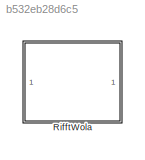
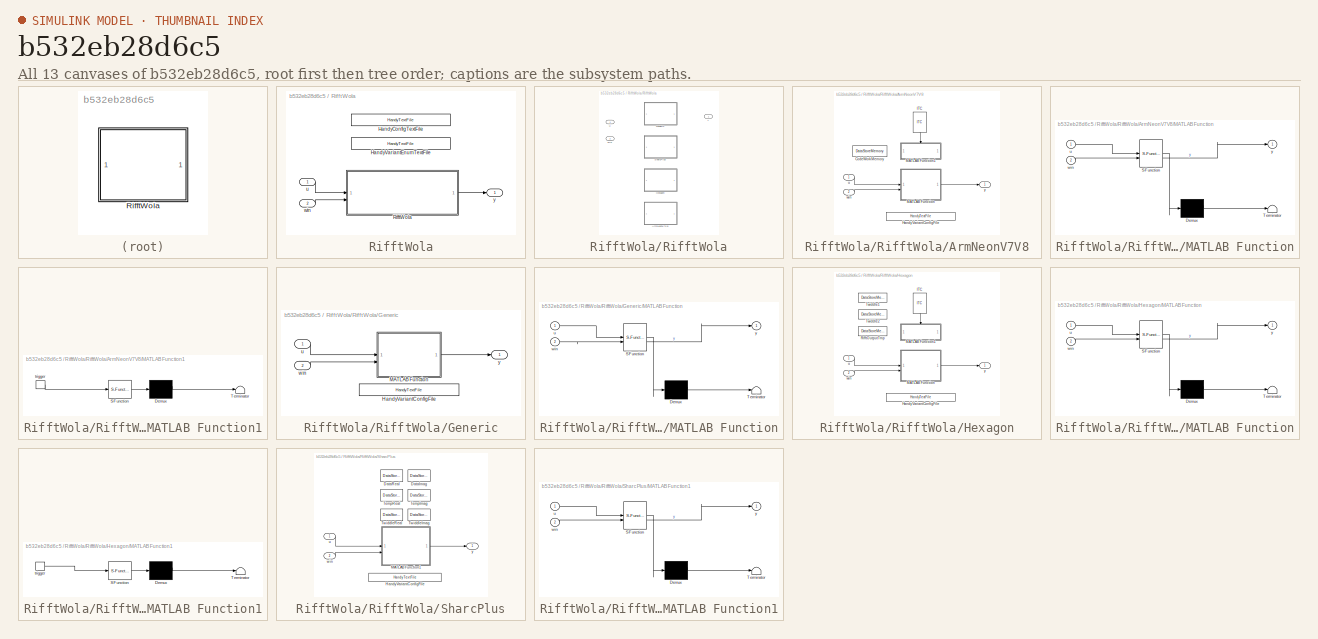
[diagram: thumbnail index - all 13 canvases of the model, root first then tree order]
MODEL slx_b532eb28d6c5
KIND library
CONFIG AbsTol = auto
CONFIG EnableMultiTasking = off
CONFIG FixedStep = auto
CONFIG MaxStep = auto
CONFIG MinStep = auto
CONFIG RelTol = 1e-3
CONFIG SampleTimeConstraint = Unconstrained
CONFIG SolverName = VariableStepAuto
CONFIG StartTime = 0.0
CONFIG StopTime = 10.0
BLOCK [SubSystem] RifftWola
BLOCK [Reference] RifftWola/HandyConfigTextFile  REF=HandyTextFile/HandyTextFile
  SourceBlock = HandyTextFile/HandyTextFile
  SourceProductName = Bose Talaria
  SourceType = Talaria Handy Text File
BLOCK [Reference] RifftWola/HandyVariantEnumTextFile  REF=HandyTextFile/HandyTextFile
  SourceBlock = HandyTextFile/HandyTextFile
  SourceProductName = Bose Talaria
  SourceType = Talaria Handy Text File
BLOCK [SubSystem] RifftWola/RifftWola
  Variant = on
BLOCK [SubSystem] RifftWola/RifftWola/ArmNeonV7V8
  VariantControl = Config.Variant == "ArmNeonV7V8"
BLOCK [DataStoreMemory] RifftWola/RifftWola/ArmNeonV7V8/CodeWorkMemory
  DataStoreName = CodeWorkMemory
  InitialValue = Config.VariantObj.DsmCodeWorkMemoryInitValue
  OutDataTypeStr = uint32
  ShowAdditionalParam = off
  SignalType = real
  WriteAfterWriteMsg = warning
BLOCK [Reference] RifftWola/RifftWola/ArmNeonV7V8/HandyVariantConfigFile  REF=HandyTextFile/HandyTextFile
  SourceBlock = HandyTextFile/HandyTextFile
  SourceProductName = Bose Talaria
  SourceType = Talaria Handy Text File
BLOCK [Reference] RifftWola/RifftWola/ArmNeonV7V8/ITC  REF=ITC/ITC
  NameLocation = right
  SourceBlock = ITC/ITC
  SourceProductName = Bose Talaria
  SourceType = Talaria Initialization Trigger Control
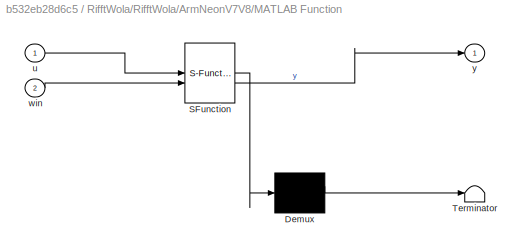
BLOCK [SubSystem] RifftWola/RifftWola/ArmNeonV7V8/MATLAB Function
  ErrorFcn = Stateflow.Translate.translate
  LibrarySourceBlock = simulink/User-Defined\nFunctions/MATLAB Function
  PermitHierarchicalResolution = ExplicitOnly
  SFBlockType = MATLAB Function
  TreatAsAtomicUnit = on
BLOCK [Demux] RifftWola/RifftWola/ArmNeonV7V8/MATLAB Function/ Demux 
  Outputs = 1
BLOCK [S-Function] RifftWola/RifftWola/ArmNeonV7V8/MATLAB Function/ SFunction 
  EnableBusSupport = off
  FunctionName = sf_sfun
  Parameters = fftSize,numOverlap
  PortCounts = [2 2]
  SFcnIsStateOwnerBlock = off
  SFunctionDeploymentMode = off
  Tag = Stateflow S-Function 1
BLOCK [Terminator] RifftWola/RifftWola/ArmNeonV7V8/MATLAB Function/ Terminator 
BLOCK [Inport] RifftWola/RifftWola/ArmNeonV7V8/MATLAB Function/u
BLOCK [Inport] RifftWola/RifftWola/ArmNeonV7V8/MATLAB Function/win
  Port = 2
BLOCK [Outport] RifftWola/RifftWola/ArmNeonV7V8/MATLAB Function/y
BLOCK [SubSystem] RifftWola/RifftWola/ArmNeonV7V8/MATLAB Function1
  ErrorFcn = Stateflow.Translate.translate
  LibrarySourceBlock = simulink/User-Defined\nFunctions/MATLAB Function
  PermitHierarchicalResolution = ExplicitOnly
  SFBlockType = MATLAB Function
  TreatAsAtomicUnit = on
BLOCK [Demux] RifftWola/RifftWola/ArmNeonV7V8/MATLAB Function1/ Demux 
  Outputs = 1
BLOCK [S-Function] RifftWola/RifftWola/ArmNeonV7V8/MATLAB Function1/ SFunction 
  EnableBusSupport = off
  FunctionName = sf_sfun
  Parameters = fftSize
  PortCounts = [1 1]
  SFcnIsStateOwnerBlock = off
  SFunctionDeploymentMode = off
  Tag = Stateflow S-Function 6
BLOCK [Terminator] RifftWola/RifftWola/ArmNeonV7V8/MATLAB Function1/ Terminator 
BLOCK [TriggerPort] RifftWola/RifftWola/ArmNeonV7V8/MATLAB Function1/trigger
  ShowOutputPort = on
  StatesWhenEnabling = held
  TriggerType = function-call
  VariantControl = (inherit)
BLOCK [Inport] RifftWola/RifftWola/ArmNeonV7V8/u
BLOCK [Inport] RifftWola/RifftWola/ArmNeonV7V8/win
  Port = 2
BLOCK [Outport] RifftWola/RifftWola/ArmNeonV7V8/y
BLOCK [SubSystem] RifftWola/RifftWola/Generic
  VariantControl = (default)
BLOCK [Reference] RifftWola/RifftWola/Generic/HandyVariantConfigFile  REF=HandyTextFile/HandyTextFile
  SourceBlock = HandyTextFile/HandyTextFile
  SourceProductName = Bose Talaria
  SourceType = Talaria Handy Text File
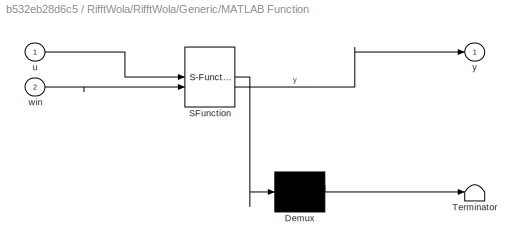
BLOCK [SubSystem] RifftWola/RifftWola/Generic/MATLAB Function
  ErrorFcn = Stateflow.Translate.translate
  LibrarySourceBlock = simulink/User-Defined\nFunctions/MATLAB Function
  PermitHierarchicalResolution = ExplicitOnly
  SFBlockType = MATLAB Function
  TreatAsAtomicUnit = on
BLOCK [Demux] RifftWola/RifftWola/Generic/MATLAB Function/ Demux 
  Outputs = 1
BLOCK [S-Function] RifftWola/RifftWola/Generic/MATLAB Function/ SFunction 
  EnableBusSupport = off
  FunctionName = sf_sfun
  Parameters = fftSize,numOverlap
  PortCounts = [2 2]
  SFcnIsStateOwnerBlock = off
  SFunctionDeploymentMode = off
  Tag = Stateflow S-Function 5
BLOCK [Terminator] RifftWola/RifftWola/Generic/MATLAB Function/ Terminator 
BLOCK [Inport] RifftWola/RifftWola/Generic/MATLAB Function/u
BLOCK [Inport] RifftWola/RifftWola/Generic/MATLAB Function/win
  Port = 2
BLOCK [Outport] RifftWola/RifftWola/Generic/MATLAB Function/y
BLOCK [Inport] RifftWola/RifftWola/Generic/u
BLOCK [Inport] RifftWola/RifftWola/Generic/win
  Port = 2
BLOCK [Outport] RifftWola/RifftWola/Generic/y
BLOCK [SubSystem] RifftWola/RifftWola/Hexagon
  VariantControl = Config.Variant == "Hexagon"
BLOCK [Reference] RifftWola/RifftWola/Hexagon/HandyVariantConfigFile  REF=HandyTextFile/HandyTextFile
  SourceBlock = HandyTextFile/HandyTextFile
  SourceProductName = Bose Talaria
  SourceType = Talaria Handy Text File
BLOCK [Reference] RifftWola/RifftWola/Hexagon/ITC  REF=ITC/ITC
  NameLocation = right
  SourceBlock = ITC/ITC
  SourceProductName = Bose Talaria
  SourceType = Talaria Initialization Trigger Control
BLOCK [SubSystem] RifftWola/RifftWola/Hexagon/MATLAB Function
  ErrorFcn = Stateflow.Translate.translate
  LibrarySourceBlock = simulink/User-Defined\nFunctions/MATLAB Function
  PermitHierarchicalResolution = ExplicitOnly
  SFBlockType = MATLAB Function
  TreatAsAtomicUnit = on
BLOCK [Demux] RifftWola/RifftWola/Hexagon/MATLAB Function/ Demux 
  Outputs = 1
BLOCK [S-Function] RifftWola/RifftWola/Hexagon/MATLAB Function/ SFunction 
  EnableBusSupport = off
  FunctionName = sf_sfun
  Parameters = fftSize,numOverlap
  PortCounts = [2 2]
  SFcnIsStateOwnerBlock = off
  SFunctionDeploymentMode = off
  Tag = Stateflow S-Function 2
BLOCK [Terminator] RifftWola/RifftWola/Hexagon/MATLAB Function/ Terminator 
BLOCK [Inport] RifftWola/RifftWola/Hexagon/MATLAB Function/u
BLOCK [Inport] RifftWola/RifftWola/Hexagon/MATLAB Function/win
  Port = 2
BLOCK [Outport] RifftWola/RifftWola/Hexagon/MATLAB Function/y
BLOCK [SubSystem] RifftWola/RifftWola/Hexagon/MATLAB Function1
  ErrorFcn = Stateflow.Translate.translate
  LibrarySourceBlock = simulink/User-Defined\nFunctions/MATLAB Function
  PermitHierarchicalResolution = ExplicitOnly
  SFBlockType = MATLAB Function
  TreatAsAtomicUnit = on
BLOCK [Demux] RifftWola/RifftWola/Hexagon/MATLAB Function1/ Demux 
  Outputs = 1
BLOCK [S-Function] RifftWola/RifftWola/Hexagon/MATLAB Function1/ SFunction 
  EnableBusSupport = off
  FunctionName = sf_sfun
  Parameters = fftSize
  PortCounts = [1 1]
  SFcnIsStateOwnerBlock = off
  SFunctionDeploymentMode = off
  Tag = Stateflow S-Function 3
BLOCK [Terminator] RifftWola/RifftWola/Hexagon/MATLAB Function1/ Terminator 
BLOCK [TriggerPort] RifftWola/RifftWola/Hexagon/MATLAB Function1/trigger
  ShowOutputPort = on
  StatesWhenEnabling = held
  TriggerType = function-call
  VariantControl = (inherit)
BLOCK [DataStoreMemory] RifftWola/RifftWola/Hexagon/RifftOutputTmp
  DataStoreName = RifftOutputTmp
  InitialValue = Config.VariantObj.DsmRifftOutputTmpInitValue
  OutDataTypeStr = single
  ShowAdditionalParam = off
  SignalType = complex
  WriteAfterWriteMsg = warning
BLOCK [DataStoreMemory] RifftWola/RifftWola/Hexagon/Twiddle1
  DataStoreName = Twiddle1
  InitialValue = Config.VariantObj.DsmTwiddle1InitValue
  OutDataTypeStr = single
  ShowAdditionalParam = off
  SignalType = complex
  WriteAfterWriteMsg = warning
BLOCK [DataStoreMemory] RifftWola/RifftWola/Hexagon/Twiddle2
  DataStoreName = Twiddle2
  InitialValue = Config.VariantObj.DsmTwiddle2InitValue
  OutDataTypeStr = single
  ShowAdditionalParam = off
  SignalType = complex
  WriteAfterWriteMsg = warning
BLOCK [Inport] RifftWola/RifftWola/Hexagon/u
BLOCK [Inport] RifftWola/RifftWola/Hexagon/win
  Port = 2
BLOCK [Outport] RifftWola/RifftWola/Hexagon/y
BLOCK [SubSystem] RifftWola/RifftWola/SharcPlus
  VariantControl = Config.Variant.StartsWith("SharcPlus")
BLOCK [DataStoreMemory] RifftWola/RifftWola/SharcPlus/DataImag
  DataStoreName = DataImag
  InitialValue = Config.VariantObj.DsmDataImagInitValue
  OutDataTypeStr = single
  ReadBeforeWriteMsg = warning
  ShowAdditionalParam = off
  SignalType = real
  WriteAfterReadMsg = warning
  WriteAfterWriteMsg = warning
BLOCK [DataStoreMemory] RifftWola/RifftWola/SharcPlus/DataReal
  DataStoreName = DataReal
  InitialValue = Config.VariantObj.DsmDataRealInitValue
  OutDataTypeStr = single
  ReadBeforeWriteMsg = warning
  ShowAdditionalParam = off
  SignalType = real
  WriteAfterReadMsg = warning
  WriteAfterWriteMsg = warning
BLOCK [Reference] RifftWola/RifftWola/SharcPlus/HandyVariantConfigFile  REF=HandyTextFile/HandyTextFile
  SourceBlock = HandyTextFile/HandyTextFile
  SourceProductName = Bose Talaria
  SourceType = Talaria Handy Text File
BLOCK [SubSystem] RifftWola/RifftWola/SharcPlus/MATLAB Function1
  ErrorFcn = Stateflow.Translate.translate
  PermitHierarchicalResolution = ExplicitOnly
  SFBlockType = MATLAB Function
  TreatAsAtomicUnit = on
BLOCK [Demux] RifftWola/RifftWola/SharcPlus/MATLAB Function1/ Demux 
  Outputs = 1
BLOCK [S-Function] RifftWola/RifftWola/SharcPlus/MATLAB Function1/ SFunction 
  EnableBusSupport = off
  FunctionName = sf_sfun
  Parameters = fftSize,numOverlap
  PortCounts = [2 2]
  SFcnIsStateOwnerBlock = off
  SFunctionDeploymentMode = off
  Tag = Stateflow S-Function 4
BLOCK [Terminator] RifftWola/RifftWola/SharcPlus/MATLAB Function1/ Terminator 
BLOCK [Inport] RifftWola/RifftWola/SharcPlus/MATLAB Function1/u
BLOCK [Inport] RifftWola/RifftWola/SharcPlus/MATLAB Function1/win
  Port = 2
BLOCK [Outport] RifftWola/RifftWola/SharcPlus/MATLAB Function1/y
  VectorParamsAs1DForOutWhenUnconnected = off
BLOCK [DataStoreMemory] RifftWola/RifftWola/SharcPlus/TempImag
  DataStoreName = TempImag
  InitialValue = Config.VariantObj.DsmTempImagInitValue
  OutDataTypeStr = single
  ReadBeforeWriteMsg = warning
  ShowAdditionalParam = off
  SignalType = real
  WriteAfterReadMsg = warning
  WriteAfterWriteMsg = warning
BLOCK [DataStoreMemory] RifftWola/RifftWola/SharcPlus/TempReal
  DataStoreName = TempReal
  InitialValue = Config.VariantObj.DsmTempRealInitValue
  OutDataTypeStr = single
  ReadBeforeWriteMsg = warning
  ShowAdditionalParam = off
  SignalType = real
  WriteAfterReadMsg = warning
  WriteAfterWriteMsg = warning
BLOCK [DataStoreMemory] RifftWola/RifftWola/SharcPlus/TwiddleImag
  DataStoreName = TwiddleImag
  InitialValue = Config.VariantObj.DsmTwiddleImagInitValue
  OutDataTypeStr = uint32
  ReadBeforeWriteMsg = warning
  ShowAdditionalParam = off
  SignalType = real
  WriteAfterReadMsg = warning
  WriteAfterWriteMsg = warning
BLOCK [DataStoreMemory] RifftWola/RifftWola/SharcPlus/TwiddleReal
  DataStoreName = TwiddleReal
  InitialValue = Config.VariantObj.DsmTwiddleRealInitValue
  OutDataTypeStr = uint32
  ReadBeforeWriteMsg = warning
  ShowAdditionalParam = off
  SignalType = real
  WriteAfterReadMsg = warning
  WriteAfterWriteMsg = warning
BLOCK [Inport] RifftWola/RifftWola/SharcPlus/u
BLOCK [Inport] RifftWola/RifftWola/SharcPlus/win
  Port = 2
BLOCK [Outport] RifftWola/RifftWola/SharcPlus/y
BLOCK [Inport] RifftWola/RifftWola/u
BLOCK [Inport] RifftWola/RifftWola/win
  Port = 2
BLOCK [Outport] RifftWola/RifftWola/y
BLOCK [Inport] RifftWola/u
BLOCK [Inport] RifftWola/win
  Port = 2
BLOCK [Outport] RifftWola/y
  VectorParamsAs1DForOutWhenUnconnected = off
CHART RifftWola/RifftWola/ArmNeonV7V8/MATLAB Function states=1 transitions=1
  STATE_LABEL 'eML_blk_kernel()'
  STATE_LABEL 'SCRIPT:\nfunction y = Rifft(u, win, fftSize, numOverlap)\n\nglobal CodeWorkMemory;\n\n[~, numChannels] = size(u);\noutputSize = fftSize - numOverlap;\n\n% Buffer to hold overlapped samples\npersistent outputOverlap;\nif isempty(outputOverlap)\n    outputOverlap = single(zeros(numOverlap, numChannels));\nend\n\n% Buffer for Simulation \npersistent lastFrame;\n\n% Nullcopy copies type, size, and complexity of input ...<+1110ch>'
CHART RifftWola/RifftWola/Hexagon/MATLAB Function states=1 transitions=1
  STATE_LABEL 'eML_blk_kernel()'
  STATE_LABEL 'SCRIPT:\nfunction y = Rifft(u, win, fftSize, numOverlap)\n\nglobal Twiddle1;\nglobal Twiddle2;\nglobal RifftOutputTmp;\n\n[~, numChannels] = size(u);\noutputSize = fftSize - numOverlap;\n\n% Buffer to hold overlapped samples\npersistent outputOverlap;\nif isempty(outputOverlap)\n    outputOverlap = single(zeros(numOverlap, numChannels));\nend\n\n% Buffer for Simulation \npersistent lastFrame;\n\n% Nullcopy copies ty...<+1422ch>'
CHART RifftWola/RifftWola/Hexagon/MATLAB Function1 states=1 transitions=1
  STATE_LABEL 'eML_blk_kernel()'
  STATE_LABEL 'SCRIPT:\nfunction RifftInit(fftSize)\n% Initializes the Twiddle factors used for RFFT computation\n\nglobal Twiddle1;\nglobal Twiddle2;\n\n% Intialize Twiddle Factors\n[Twiddle1, Twiddle2] = rfft_init(int32(fftSize));\n\nend\n\nfunction [Twiddle1, Twiddle2] = rfft_init(fftSize)\n% Twiddle1: Twiddle factor for N/2-point complex FFT\n% Twiddle2: Twiddle factors for last stage\n% If target == codegen, error out if ...<+157ch>'
CHART RifftWola/RifftWola/SharcPlus/MATLAB Function1 states=1 transitions=1
  STATE_LABEL 'eML_blk_kernel()'
  STATE_LABEL 'SCRIPT:\n function y = Rifft(u, win, fftSize, numOverlap)   \n\nglobal DataReal\nglobal DataImag\nglobal TempReal\nglobal TempImag\nglobal TwiddleReal\nglobal TwiddleImag\n\n[~, numChannels] = size(u);\noutputSize = fftSize - numOverlap;\n\n% Buffer to hold overlapped samples\npersistent outputOverlap;\nif isempty(outputOverlap)\n    outputOverlap = single(zeros(numOverlap, numChannels));\nend\n\n% Buffer for Simula...<+1620ch>'
CHART RifftWola/RifftWola/Generic/MATLAB Function states=1 transitions=1
  STATE_LABEL 'eML_blk_kernel()'
  STATE_LABEL 'SCRIPT:\n function y = Rifft(u, win, fftSize, numOverlap)\n\n% Buffer to hold overlapped samples\nnumChannels = size(u,2);\npersistent lastFrame;\nif isempty(lastFrame)\n    lastFrame = single(zeros(numOverlap, numChannels));\nend\n[y, lastFrame] = RifftProcessSim(u, win, numOverlap, lastFrame);\n\nend'
CHART RifftWola/RifftWola/ArmNeonV7V8/MATLAB Function1 states=1 transitions=1
  STATE_LABEL 'eML_blk_kernel()'
  STATE_LABEL "SCRIPT:\nfunction RifftInit(fftSize)\n\nglobal CodeWorkMemory;\n\nif ~(coder.target('MATLAB') || coder.target('Sfun')) \n    y = rfft_armv7v8_init(uint32(fftSize), uint32(CodeWorkMemory));    \n    % NOTE: The CRL mechanism requires an output for the function call,\n    % and appears to be optimized out if that return value isn't used. \n    % This is a dummy operation to make sure CRL ends up in generated...<+323ch>"
CHART  states=0 transitions=0
CHART  states=0 transitions=0
CHART  states=0 transitions=0
CHART  states=0 transitions=0
CHART  states=0 transitions=0
CHART  states=0 transitions=0
